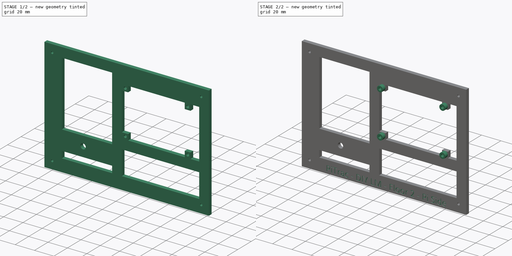
[diagram: build sequence overview — one tinted view per stage of 2, left to right]
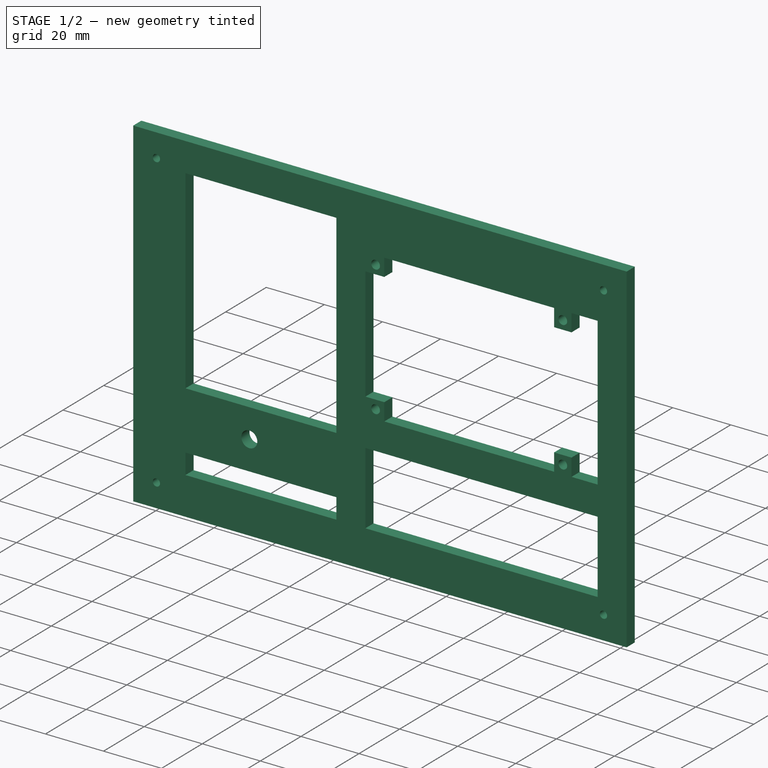
[diagram: stage 1 of 2 — iso view after this stage's code; geometry added in this stage tinted green]
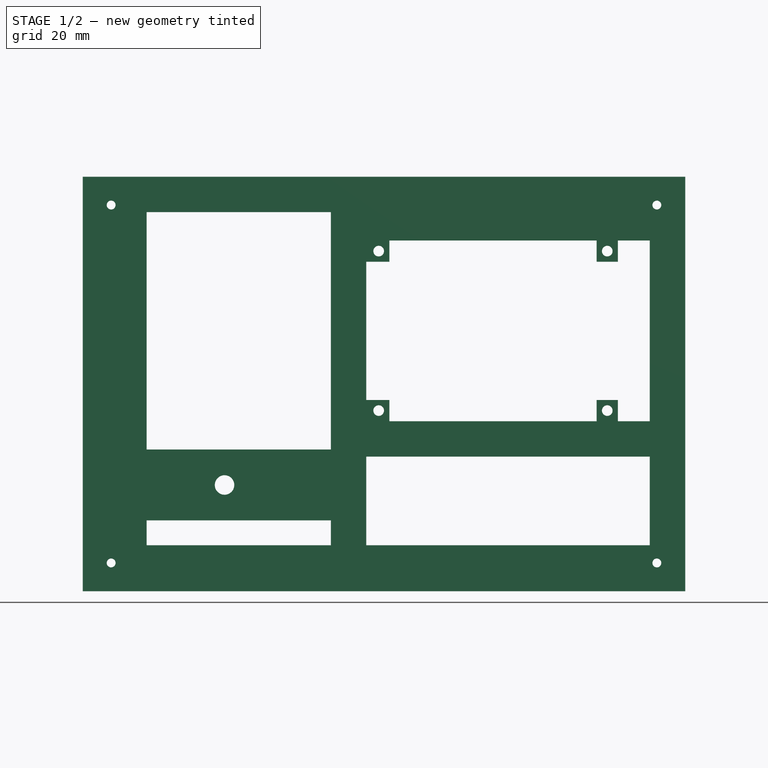
[diagram: stage 1 of 2 — front view after this stage's code; geometry added in this stage tinted green]
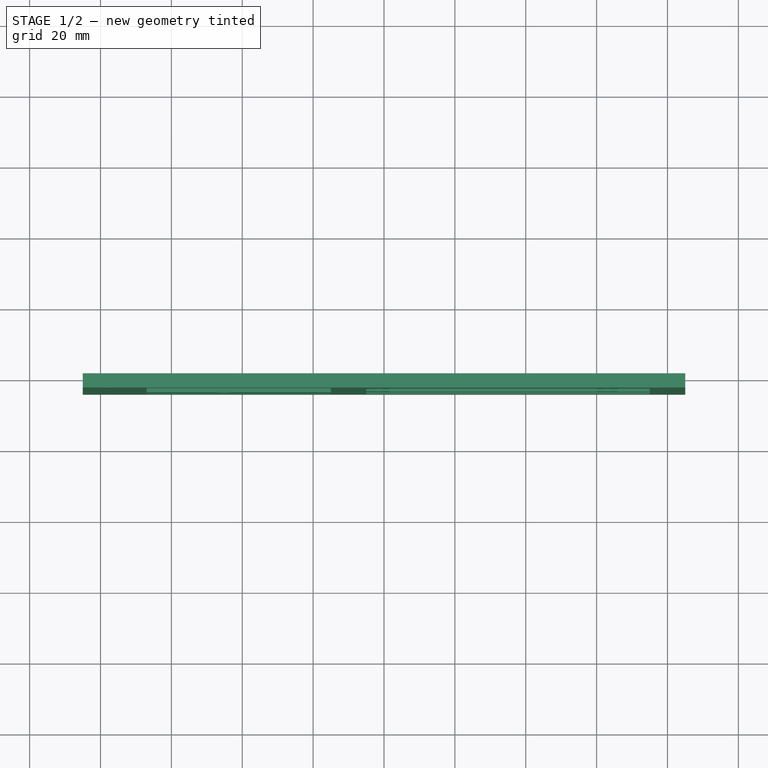
[diagram: stage 1 of 2 — top view after this stage's code; geometry added in this stage tinted green]
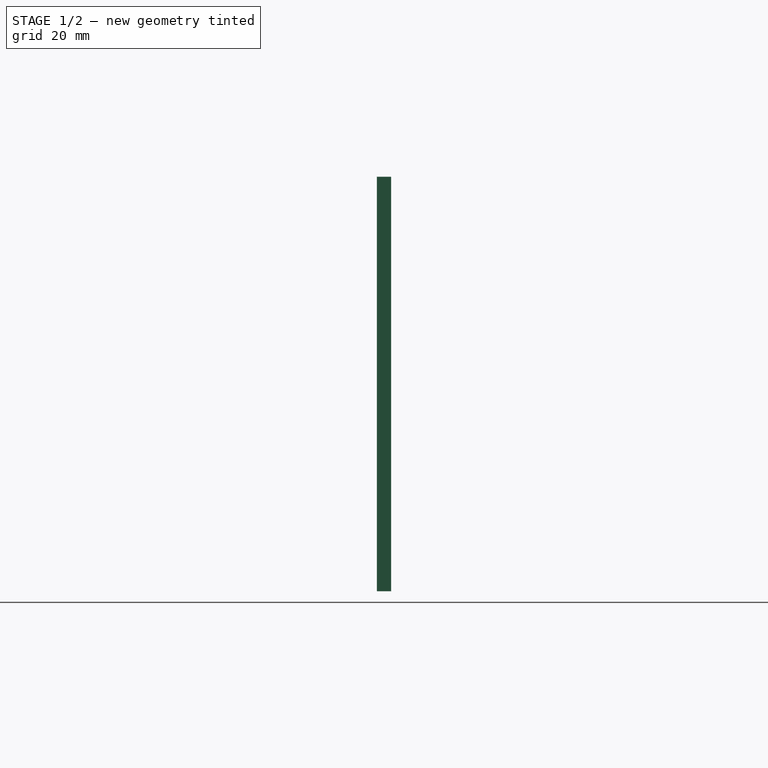
[diagram: stage 1 of 2 — right view after this stage's code; geometry added in this stage tinted green]
FCSTD DOCUMENT  (FreeCAD 1.0R39109 (Git))
Label: Middle Layer - Pi Side - Lower Floor
License: All rights reserved
LicenseURL: https://en.wikipedia.org/wiki/All_rights_reserved
objects: Sketcher::SketchObject×3, PartDesign::Pad×2, PartDesign::Pocket×2, App::Link×1, Part::Part2DObjectPython×1, PartDesign::Body×1, App::Part×1
note: 20 computed .brp shape members not serialized (recipe doc carries the construction recipe); baked Part::Feature solids carry a one-line shape summary decoded from their .brp
EXTERNAL_REF file=../Master Document.FCStd obj=Spreadsheet

FEATURE [Sketcher::SketchObject] Sketch
  ArcFitTolerance = 0
  FullyConstrained = true
  MakeInternals = false
  MapMode = 5
  Placement = pos=(0,0,0) rot=(1,0,0;1.5708rad)
  expr: Constraints[5] = <<Monitor Chassis Parameters>>.GSMonitorFloorWidth_PiSide
  expr: Constraints[6] = <<Monitor Chassis Parameters>>.GSMonitorFloorLength_PiSide
  expr: Constraints[7] = <<Monitor Chassis Parameters>>.GSMonitorFloorLength_PiSide / 2
  expr: Constraints[8] = <<Monitor Chassis Parameters>>.GSMonitorFloorWidth_PiSide / 2
  sketch-geometry (4):
    g0: LineSegment StartX=-85 StartY=58.5 StartZ=0 EndX=85 EndY=58.5 EndZ=0
    g1: LineSegment StartX=85 StartY=-58.5 StartZ=0 EndX=-85 EndY=-58.5 EndZ=0
    g2: LineSegment StartX=-85 StartY=-58.5 StartZ=0 EndX=-85 EndY=58.5 EndZ=0
    g3: LineSegment StartX=85 StartY=58.5 StartZ=0 EndX=85 EndY=-58.5 EndZ=0
  constraints (12):
    c: Coincident(g1,g2)
    c: Coincident(g2,g0)
    c: Horizontal(g0)
    c: Horizontal(g1)
    c: Vertical(g2)
    c: DistanceY(g1,g0) = 117
    c: DistanceX(g0,g0) = 170
    c: DistanceX(g0,g-1) = 85
    c: DistanceY(g-1,g0) = 58.5
    c: Coincident(g3,g0)
    c: Coincident(g3,g1)
    c: Vertical(g3)
FEATURE [PartDesign::Pad] Pad  label="Floor 1 Pad"
  Direction = (0,-1,0)
  Length = 4
  Length2 = 10
  Placement = pos=(0,0,0) rot=(1,0,0;1.5708rad)
  Profile = -> Sketch
  ReferenceAxis = -> Sketch [N_Axis]
  Suppressed = false
  Type = 0
  expr: Length = <<Monitor Chassis Parameters>>.GSMonitorFloorThickness
FEATURE [Sketcher::SketchObject] Sketch003
  ArcFitTolerance = 0
  FullyConstrained = true
  MakeInternals = false
  MapMode = 5
  Placement = pos=(0,-4,0) rot=(1,0,0;1.5708rad)
  expr: Constraints[0] = <<Monitor Chassis Parameters>>.GsPi5MountingHoleDiameter
  expr: Constraints[104] = <<Monitor Chassis Parameters>>.GSMonitorFloorRibMinimumWidth
  expr: Constraints[107] = <<Monitor Chassis Parameters>>.GSMonitorFloorStrobeMountHoleEdgeOffset
  expr: Constraints[10] = <<Monitor Chassis Parameters>>.GsPi5MountingHoleDiameter
  expr: Constraints[11] = <<Monitor Chassis Parameters>>.GsPi5MountingHoleDiameter
  expr: Constraints[12] = <<Monitor Chassis Parameters>>.GSMonitorFloorMountHoleSideOffset
  expr: Constraints[13] = <<Monitor Chassis Parameters>>.GSMonitorFloorMountHoleEdgeOffset
  expr: Constraints[15] = <<Monitor Chassis Parameters>>.GSMonitorFloorMountHoleEdgeOffset
  expr: Constraints[17] = <<Monitor Chassis Parameters>>.GsPi5MountingHoleDiameter
  expr: Constraints[18] = <<Monitor Chassis Parameters>>.GsPi5MountingHoleDiameter
  expr: Constraints[19] = <<Monitor Chassis Parameters>>.GsPi5MountingHoleDiameter
  expr: Constraints[1] = <<Monitor Chassis Parameters>>.GSMonitorFloorPiEndOffset - 10
  expr: Constraints[20] = <<Monitor Chassis Parameters>>.GsPi5MountingHoleDiameter
  expr: Constraints[28] = <<Monitor Chassis Parameters>>.GsPi5MountingHoleDiameter
  expr: Constraints[29] = 12
  expr: Constraints[2] = <<Monitor Chassis Parameters>>.GSMonitorFloorPiNearSideOffset
  expr: Constraints[32] = <<Monitor Chassis Parameters>>.GsPi5MountingHoleDiameter
  expr: Constraints[35] = <<Monitor Chassis Parameters>>.GsPi5MountingHoleDiameter
  expr: Constraints[3] = <<Monitor Chassis Parameters>>.GsPi5MountingHoleDiameter
  expr: Constraints[46] = <<Monitor Chassis Parameters>>.GsPi5MountingHoleDiameter
  expr: Constraints[50] = <<Monitor Chassis Parameters>>.GSMonitorFloorStrobeMountHoleFrontOffset
  expr: Constraints[5] = <<Monitor Chassis Parameters>>.GSMonitorConnectorBoardHoleSeparationWidth
  expr: Constraints[60] = <<Monitor Chassis Parameters>>.GSMonitorFloorMountingScrewDiameter
  expr: Constraints[61] = <<Monitor Chassis Parameters>>.GSMonitorFloorMountingScrewDiameter
  expr: Constraints[62] = <<Monitor Chassis Parameters>>.GSMonitorFloorMountingScrewDiameter
  expr: Constraints[63] = <<Monitor Chassis Parameters>>.GSMonitorFloorMountHoleSideOffset
  expr: Constraints[64] = <<Monitor Chassis Parameters>>.GSMonitorFloorMountHoleSideOffset
  expr: Constraints[66] = <<Monitor Chassis Parameters>>.GSMonitorFloorMountHoleSideOffset
  expr: Constraints[67] = <<Monitor Chassis Parameters>>.GSMonitorFloorRibMinimumWidth + 3
  expr: Constraints[68] = <<Monitor Chassis Parameters>>.GSMonitorFloorRibMinimumWidth
  expr: Constraints[69] = <<Monitor Chassis Parameters>>.GSMonitorFloorMountingScrewDiameter
  expr: Constraints[70] = <<Monitor Chassis Parameters>>.GSMonitorFloorCameraMountHoleDiameter
  expr: Constraints[7] = <<Monitor Chassis Parameters>>.GSMonitorConnectorBoardHoleSeparationLength
  expr: Constraints[80] = <<Monitor Chassis Parameters>>.GSMonitorFloorRibMinimumWidth
  expr: Constraints[81] = <<Monitor Chassis Parameters>>.GSMonitorFloorRibMinimumWidth
  expr: Constraints[90] = <<Monitor Chassis Parameters>>.GSMonitorFloorRibMinimumWidth
  expr: Constraints[92] = <<Monitor Chassis Parameters>>.GSMonitorFloorRibMinimumWidth
  sketch-geometry (37):
    g0: Circle CenterX=63 CenterY=-7.5 CenterZ=0 NormalX=0 NormalY=0 NormalZ=1 AngleXU=0 Radius=1.5
    g1: Circle CenterX=63 CenterY=37.5 CenterZ=0 NormalX=0 NormalY=0 NormalZ=1 AngleXU=0 Radius=1.5
    g2: Circle CenterX=-1.5 CenterY=37.5 CenterZ=0 NormalX=0 NormalY=0 NormalZ=1 AngleXU=0 Radius=1.5
    g3: Circle CenterX=-1.5 CenterY=-7.5 CenterZ=0 NormalX=0 NormalY=0 NormalZ=1 AngleXU=0 Radius=1.5
    g4: Circle CenterX=-77 CenterY=50.5 CenterZ=0 NormalX=0 NormalY=0 NormalZ=1 AngleXU=0 Radius=1.25
    g5: Circle CenterX=-77 CenterY=-50.5 CenterZ=0 NormalX=0 NormalY=0 NormalZ=1 AngleXU=0 Radius=1.25
    g6: LineSegment StartX=1.5 StartY=40.5 StartZ=0 EndX=60 EndY=40.5 EndZ=0
    g7: LineSegment StartX=60 StartY=-10.5 StartZ=0 EndX=1.5 EndY=-10.5 EndZ=0
    g8: LineSegment StartX=66 StartY=40.5 StartZ=0 EndX=75 EndY=40.5 EndZ=0
    g9: LineSegment StartX=75 StartY=40.5 StartZ=0 EndX=75 EndY=-10.5 EndZ=0
    g10: LineSegment StartX=75 StartY=-10.5 StartZ=0 EndX=66 EndY=-10.5 EndZ=0
    g11: LineSegment StartX=60 StartY=34.5 StartZ=0 EndX=66 EndY=34.5 EndZ=0
    g12: LineSegment StartX=66 StartY=-4.5 StartZ=0 EndX=60 EndY=-4.5 EndZ=0
    g13: LineSegment StartX=60 StartY=40.5 StartZ=0 EndX=60 EndY=34.5 EndZ=0
    g14: LineSegment StartX=66 StartY=40.5 StartZ=0 EndX=66 EndY=34.5 EndZ=0
    g15: LineSegment StartX=66 StartY=-10.5 StartZ=0 EndX=66 EndY=-4.5 EndZ=0
    g16: LineSegment StartX=60 StartY=-4.5 StartZ=0 EndX=60 EndY=-10.5 EndZ=0
    g17: Circle CenterX=-45 CenterY=-28.5 CenterZ=0 NormalX=0 NormalY=0 NormalZ=1 AngleXU=0 Radius=2.75
    g18: LineSegment StartX=75 StartY=-20.5 StartZ=0 EndX=-5 EndY=-20.5 EndZ=0
    g19: LineSegment StartX=-5 StartY=-20.5 StartZ=0 EndX=-5 EndY=-45.5 EndZ=0
    g20: LineSegment StartX=-5 StartY=-45.5 StartZ=0 EndX=75 EndY=-45.5 EndZ=0
    g21: LineSegment StartX=75 StartY=-45.5 StartZ=0 EndX=75 EndY=-20.5 EndZ=0
    g22: Circle CenterX=77 CenterY=50.5 CenterZ=0 NormalX=0 NormalY=0 NormalZ=1 AngleXU=0 Radius=1.25
    g23: Circle CenterX=77 CenterY=-50.5 CenterZ=0 NormalX=0 NormalY=0 NormalZ=1 AngleXU=0 Radius=1.25
    g24: LineSegment StartX=-15 StartY=-38.5 StartZ=0 EndX=-67 EndY=-38.5 EndZ=0
    g25: LineSegment StartX=-67 StartY=-38.5 StartZ=0 EndX=-67 EndY=-45.5 EndZ=0
    g26: LineSegment StartX=-67 StartY=-45.5 StartZ=0 EndX=-15 EndY=-45.5 EndZ=0
    g27: LineSegment StartX=-15 StartY=-45.5 StartZ=0 EndX=-15 EndY=-38.5 EndZ=0
    g28: LineSegment StartX=-67 StartY=48.5 StartZ=0 EndX=-15 EndY=48.5 EndZ=0
    g29: LineSegment StartX=-15 StartY=48.5 StartZ=0 EndX=-15 EndY=-18.5 EndZ=0
    g30: LineSegment StartX=-15 StartY=-18.5 StartZ=0 EndX=-67 EndY=-18.5 EndZ=0
    g31: LineSegment StartX=-67 StartY=-18.5 StartZ=0 EndX=-67 EndY=48.5 EndZ=0
    g32: LineSegment StartX=1.5 StartY=40.5 StartZ=0 EndX=1.5 EndY=34.5 EndZ=0
    g33: LineSegment StartX=1.5 StartY=34.5 StartZ=0 EndX=-5 EndY=34.5 EndZ=0
    g34: LineSegment StartX=1.5 StartY=-4.5 StartZ=0 EndX=1.5 EndY=-10.5 EndZ=0
    g35: LineSegment StartX=-5 StartY=34.5 StartZ=0 EndX=-5 EndY=-4.5 EndZ=0
    g36: LineSegment StartX=-5 StartY=-4.5 StartZ=0 EndX=1.5 EndY=-4.5 EndZ=0
  constraints (111):
    c: Diameter(g0) = 3
    c: DistanceX(g0,g-4) = 22
    c: DistanceY(g-4,g0) = 51
    c: Diameter(g1) = 3
    c: Vertical(g1,g0)
    c: DistanceY(g0,g1) = 45
    c: Horizontal(g2,g1)
    c: DistanceX(g2,g1) = 64.5
    c: Vertical(g2,g3)
    c: Horizontal(g3,g0)
    c: Diameter(g2) = 3
    c: Diameter(g3) = 3
    c: DistanceY(g4,g-5) = 8
    c: DistanceX(g-5,g4) = 8
    c: Vertical(g4,g5)
    c: DistanceY(g-6,g5) = 8
    c: Horizontal(g6)
    c: DistanceY(g2,g6) = 3
    c: DistanceX(g7,g0) = 3
    c: DistanceY(g7,g0) = 3
    c: DistanceX(g3,g7) = 3
    c: Coincident(g8,g9)
    c: Coincident(g9,g10)
    c: Horizontal(g8)
    c: Horizontal(g10)
    c: Vertical(g9)
    c: Horizontal(g8,g6)
    c: Horizontal(g10,g7)
    c: DistanceX(g1,g8) = 3
    c: DistanceX(g1,g8) = 12
    c: Horizontal(g11)
    c: Horizontal(g12)
    c: DistanceY(g11,g1) = 3
    c: Vertical(g11,g6)
    c: Vertical(g11,g8)
    c: DistanceY(g0,g12) = 3
    c: Coincident(g13,g6)
    c: Coincident(g13,g11)
    c: Coincident(g14,g8)
    c: Coincident(g14,g11)
    c: Coincident(g15,g10)
    c: Vertical(g15)
    c: Coincident(g16,g12)
    c: Coincident(g16,g7)
    c: Vertical(g16)
    c: Coincident(g32,g6)
    c: DistanceX(g2,g6) = 3
    c: Vertical(g6,g12)
    c: Vertical(g11,g10)
    c: Coincident(g12,g15)
    c: DistanceY(g-6,g17) = 30
    c: Coincident(g18,g19)
    c: Coincident(g19,g20)
    c: Coincident(g20,g21)
    c: Coincident(g21,g18)
    c: Horizontal(g18)
    c: Horizontal(g20)
    c: Vertical(g19)
    c: Vertical(g21)
    c: Vertical(g18,g9)
    c: Diameter(g4) = 2.5
    c: Diameter(g5) = 2.5
    c: Diameter(g22) = 2.5
    c: DistanceY(g22,g-3) = 8
    c: DistanceX(g22,g-3) = 8
    c: Vertical(g23,g22)
    c: DistanceY(g-4,g23) = 8
    c: DistanceY(g-4,g20) = 13
    c: DistanceY(g18,g9) = 10
    c: Diameter(g23) = 2.5
    c: Diameter(g17) = 5.5
    c: Coincident(g24,g25)
    c: Coincident(g25,g26)
    c: Coincident(g26,g27)
    c: Coincident(g27,g24)
    c: Horizontal(g24)
    c: Horizontal(g26)
    c: Vertical(g25)
    c: Vertical(g27)
    c: Horizontal(g26,g19)
    c: DistanceX(g24,g18) = 10
    c: DistanceX(g5,g25) = 10
    c: Coincident(g28,g29)
    c: Coincident(g29,g30)
    c: Coincident(g30,g31)
    c: Coincident(g31,g28)
    c: Horizontal(g28)
    c: Horizontal(g30)
    c: Vertical(g29)
    c: Vertical(g31)
    c: DistanceY(g28,g-5) = 10
    c: Vertical(g30,g24)
    c: DistanceY(g17,g30) = 10
    c: Vertical(g32)
    c: Coincident(g33,g32)
    c: Horizontal(g33)
    c: Vertical(g34)
    c: Horizontal(g32,g11)
    c: DistanceX(g33,g32) = 6.5
    c: Vertical(g33,g35)
    c: Coincident(g35,g33)
    c: Horizontal(g34,g12)
    c: Coincident(g36,g34)
    c: Horizontal(g36,g34)
    c: DistanceY(g24,g17) = 10
    c: Horizontal(g7,g7)
    c: Coincident(g34,g7)
    c: DistanceX(g-6,g17) = 40
    c: Coincident(g35,g36)
    c: Vertical(g18,g35)
    c: Vertical(g29,g24)
FEATURE [PartDesign::Pocket] Pocket001  label="Floor Holes"
  BaseFeature = -> Pad
  Direction = (0,1,0)
  Length = 10
  Length2 = 14
  Placement = pos=(0,0,0) rot=(1,0,0;1.5708rad)
  Profile = -> Sketch003
  ReferenceAxis = -> Sketch003 [N_Axis]
  Suppressed = false
  Type = 0
  expr: Length = 10
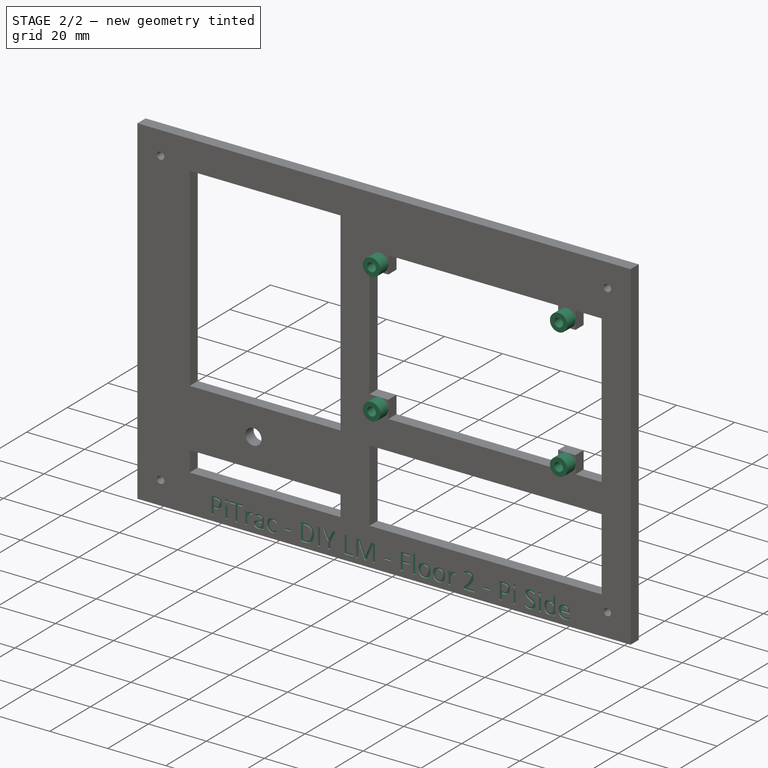
[diagram: stage 2 of 2 — iso view after this stage's code; geometry added in this stage tinted green]
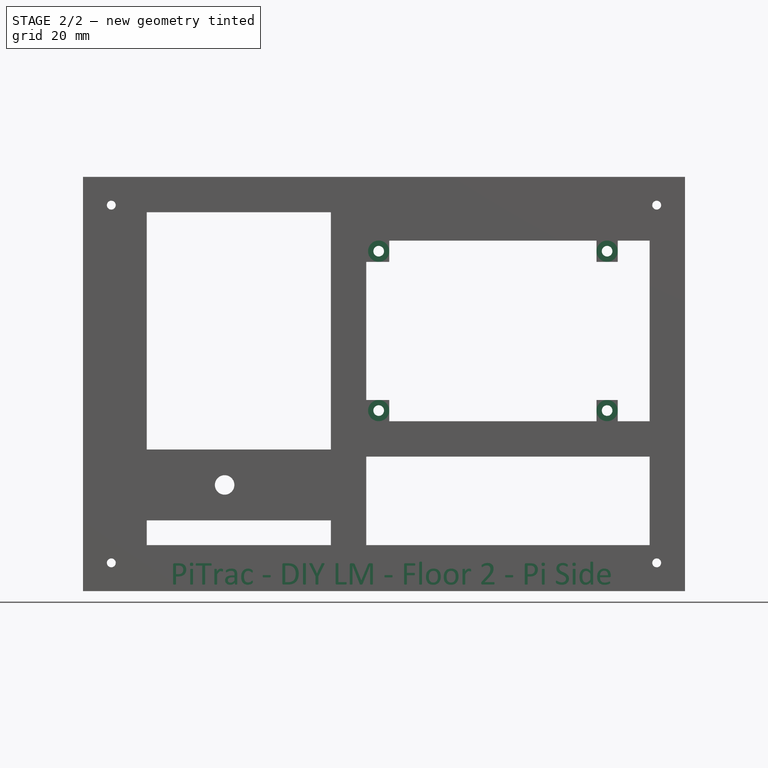
[diagram: stage 2 of 2 — front view after this stage's code; geometry added in this stage tinted green]
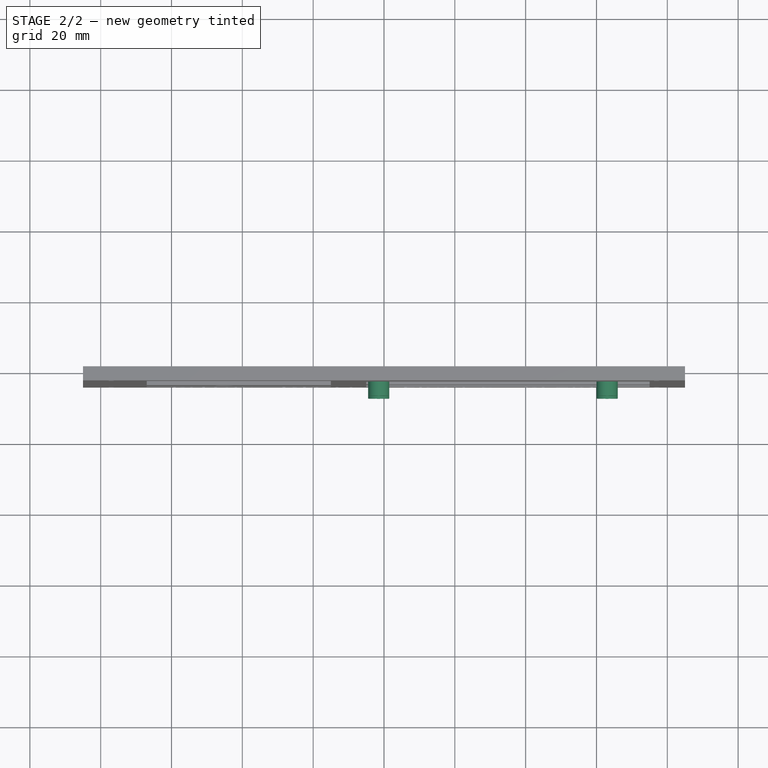
[diagram: stage 2 of 2 — top view after this stage's code; geometry added in this stage tinted green]
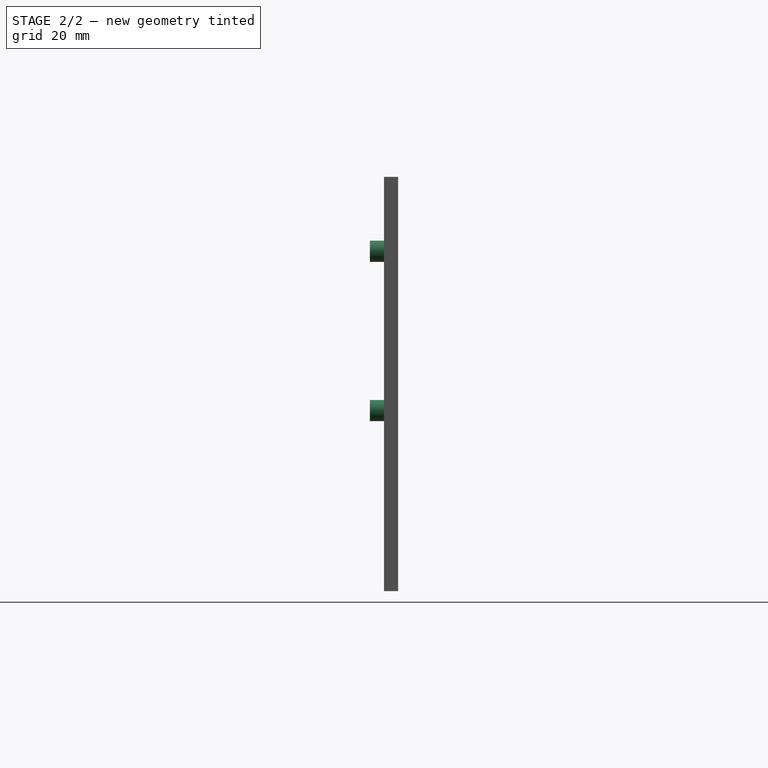
[diagram: stage 2 of 2 — right view after this stage's code; geometry added in this stage tinted green]
FEATURE [Sketcher::SketchObject] Sketch008
  ArcFitTolerance = 0
  ExternalGeometry = -> [Pocket001]
  FullyConstrained = true
  MakeInternals = false
  MapMode = 5
  Placement = pos=(0,-4,0) rot=(1,0,0;1.5708rad)
  expr: Constraints[10] = <<Monitor Chassis Parameters>>.GsPi5MountingHoleDiameter * 2
  expr: Constraints[12] = <<Monitor Chassis Parameters>>.GSMonitorConnectorBoardHoleSeparationLength
  expr: Constraints[13] = <<Monitor Chassis Parameters>>.GSMonitorConnectorBoardHoleSeparationWidth
  expr: Constraints[15] = <<Monitor Chassis Parameters>>.GsPi5MountingHoleDiameter
  expr: Constraints[16] = <<Monitor Chassis Parameters>>.GsPi5MountingHoleDiameter
  expr: Constraints[17] = <<Monitor Chassis Parameters>>.GsPi5MountingHoleDiameter
  expr: Constraints[18] = <<Monitor Chassis Parameters>>.GsPi5MountingHoleDiameter
  expr: Constraints[2] = <<Monitor Chassis Parameters>>.GsPi5MountingHoleDiameter * 2
  expr: Constraints[8] = <<Monitor Chassis Parameters>>.GsPi5MountingHoleDiameter * 2
  expr: Constraints[9] = <<Monitor Chassis Parameters>>.GsPi5MountingHoleDiameter * 2
  sketch-geometry (8):
    g0: Circle CenterX=-1.5 CenterY=37.5 CenterZ=0 NormalX=0 NormalY=0 NormalZ=1 AngleXU=0 Radius=3
    g1: Circle CenterX=-1.5 CenterY=37.5 CenterZ=0 NormalX=0 NormalY=0 NormalZ=1 AngleXU=0 Radius=1.5
    g2: Circle CenterX=-1.5 CenterY=-7.5 CenterZ=0 NormalX=0 NormalY=0 NormalZ=1 AngleXU=0 Radius=3
    g3: Circle CenterX=-1.5 CenterY=-7.5 CenterZ=0 NormalX=0 NormalY=0 NormalZ=1 AngleXU=0 Radius=1.5
    g4: Circle CenterX=63 CenterY=37.5 CenterZ=0 NormalX=0 NormalY=0 NormalZ=1 AngleXU=0 Radius=3
    g5: Circle CenterX=63 CenterY=37.5 CenterZ=0 NormalX=0 NormalY=0 NormalZ=1 AngleXU=0 Radius=1.5
    g6: Circle CenterX=63 CenterY=-7.5 CenterZ=0 NormalX=0 NormalY=0 NormalZ=1 AngleXU=0 Radius=3
    g7: Circle CenterX=63 CenterY=-7.5 CenterZ=0 NormalX=0 NormalY=0 NormalZ=1 AngleXU=0 Radius=1.5
  constraints (19):
    c: Coincident(g1,g0)
    c: Vertical(g2,g0)
    c: Diameter(g2) = 6
    c: Coincident(g3,g2)
    c: Horizontal(g0,g4)
    c: Coincident(g5,g4)
    c: Vertical(g6,g4)
    c: Horizontal(g6,g2)
    c: Diameter(g6) = 6
    c: Diameter(g4) = 6
    c: Diameter(g0) = 6
    c: Coincident(g7,g6)
    c: DistanceX(g0,g4) = 64.5
    c: DistanceY(g2,g0) = 45
    c: Coincident(g2,g-6)
    c: Diameter(g3) = 3
    c: Diameter(g7) = 3
    c: Diameter(g1) = 3
    c: Diameter(g5) = 3
FEATURE [PartDesign::Pad] Pad003  label="Pi Riser Pad"
  BaseFeature = -> Pocket001
  Direction = (0,-1,0)
  Length = 4
  Length2 = 10
  Placement = pos=(0,0,0) rot=(1,0,0;1.5708rad)
  Profile = -> Sketch008
  ReferenceAxis = -> Sketch008 [N_Axis]
  Suppressed = false
  Type = 0
  expr: Length = <<Monitor Chassis Parameters>>.GSPi5MountingRiserHeight
FEATURE [App::Link] Link  label="Monitor Chassis Parameters"
  LinkedObject = -> <external ../Master Document.FCStd>#Spreadsheet
FEATURE [Part::Part2DObjectPython] ShapeString  # Draft 2D object (typed FeaturePython)
  FontFile = <path>
  Fuse = false
  Justification = 6
  JustificationReference = 0
  KeepLeftMargin = false
  MakeFace = true
  ObliqueAngle = 0
  Placement = pos=(-59.53,-4,-56.62) rot=(1,0,0;1.5708rad)
  ScaleToSize = true
  Size = 6
  String = PiTrac - DIY LM - Floor 2 - Pi Side
  Tracking = 0
FEATURE [PartDesign::Pocket] Pocket  label="Part ID Pocket"
  BaseFeature = -> Pad003
  Direction = (0,1,0)
  Length = 0.5
  Length2 = 5
  Placement = pos=(0,0,0) rot=(1,0,0;1.5708rad)
  Profile = -> ShapeString
  ReferenceAxis = -> ShapeString [N_Axis]
  Suppressed = false
  Type = 0
FEATURE [PartDesign::Body] Body  label="Middle Layer - Pi Side - Lower Floor Body"
  AllowCompound = false
  Group = -> [Sketch,Pad,Sketch003,Pocket001,Sketch008,Pad003,ShapeString,Pocket]
  Origin = -> Origin
  Tip = -> Pocket
FEATURE [App::Part] Part001  label="Middle Layer - Pi Side - Lower Floor Object"
  Group = -> [Body]
  Origin = -> Origin004
note: 1 file-system path scrubbed to <path> (originals preserved in the JSON sidecar)
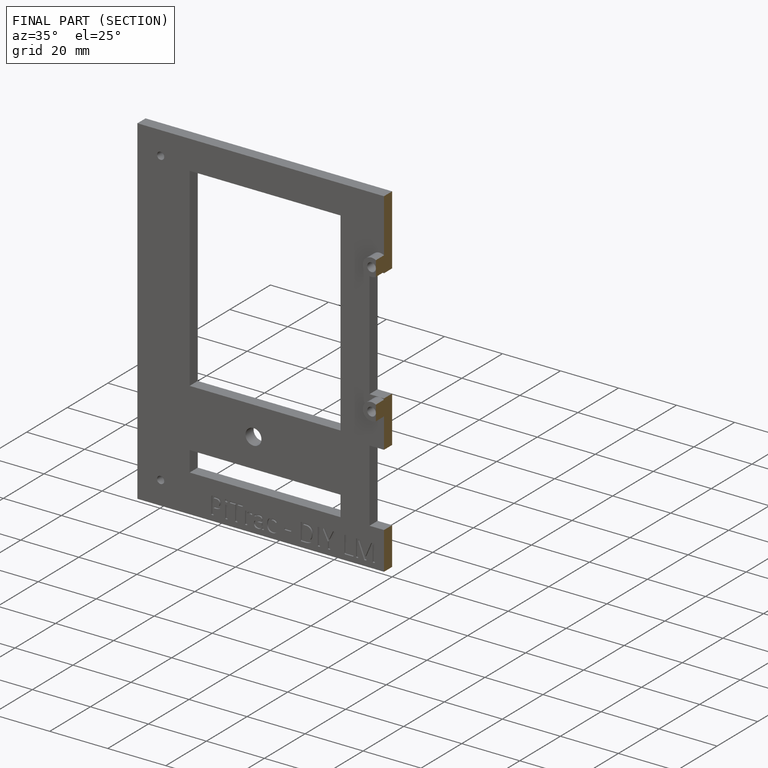
[diagram: finished part — half-section view (interior)]
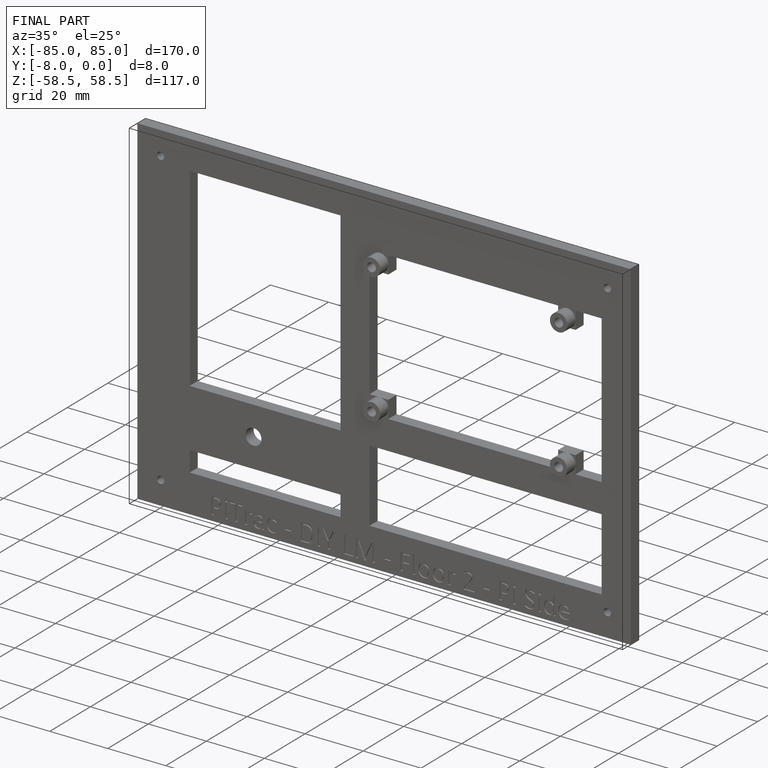
[diagram: finished part — iso view with bounding-box wireframe]
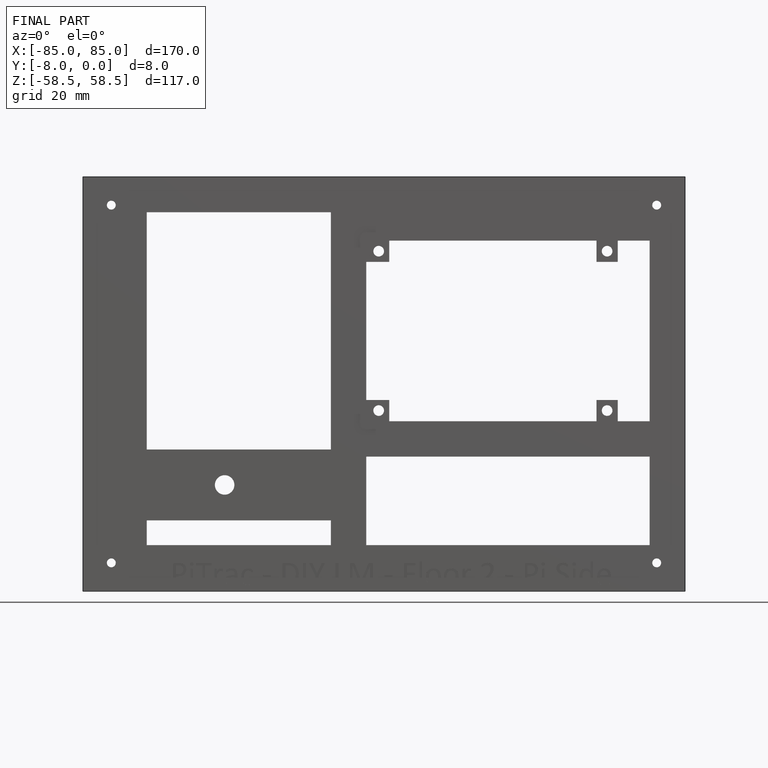
[diagram: finished part — front view with bounding-box wireframe]
